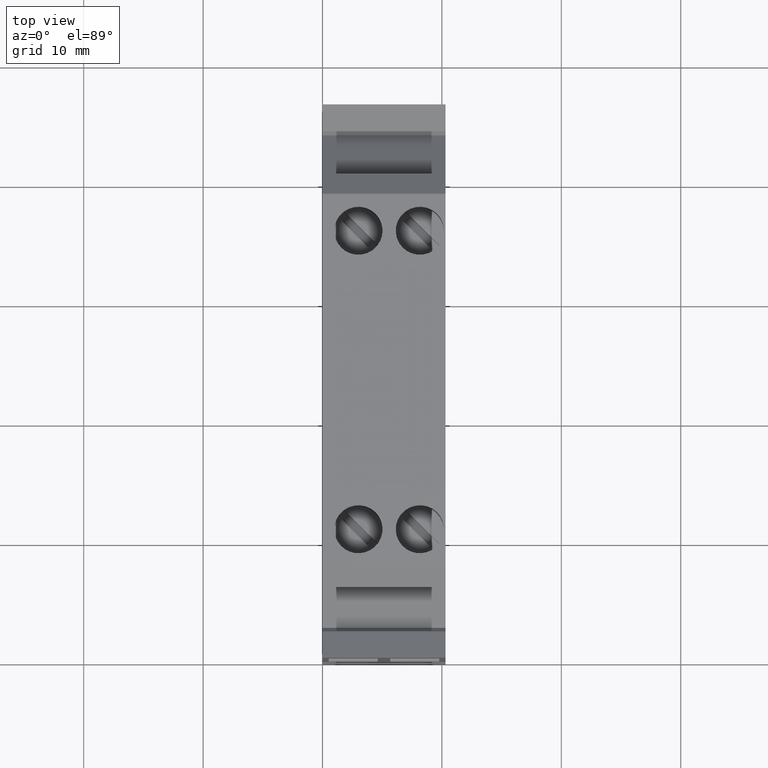
[diagram: clean part render]
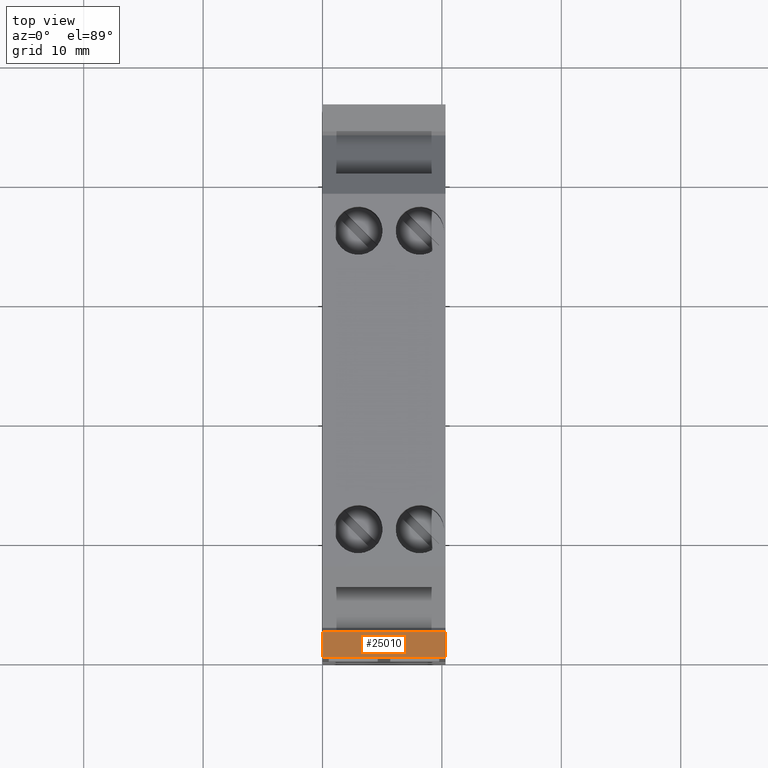
[diagram: same view with one face highlighted and labeled with its STEP entity id]
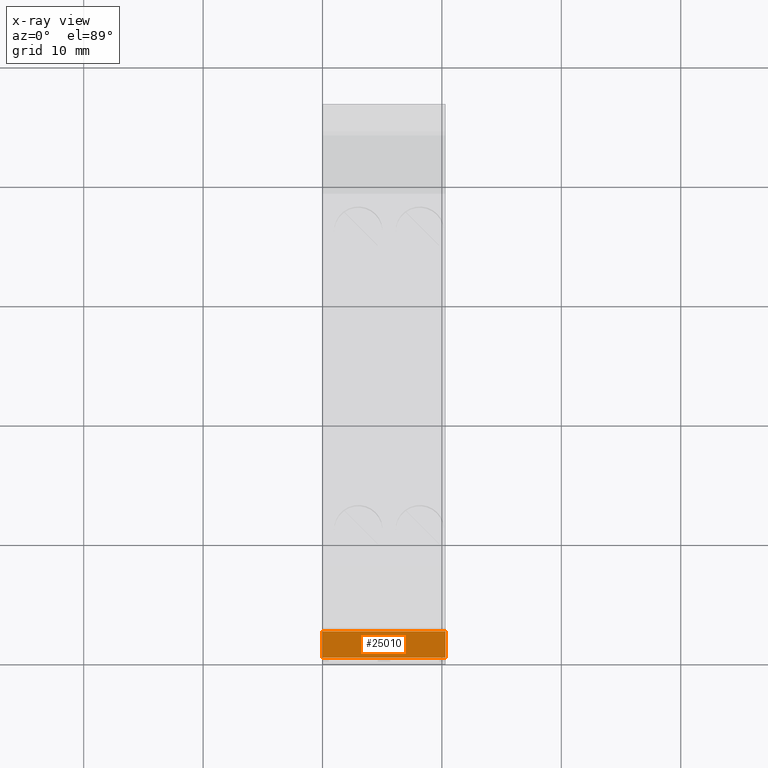
[diagram: x-ray of the same camera — body ghosted, the highlighted face saturated]
A machine part, top view. The second image highlights one B-rep face of the part: STEP entity #25010.
The next image is the same camera in x-ray: the body ghosted, the highlighted face saturated — about 0% of this face is hidden behind the body in this view.
In plain terms, the highlighted planar face has unit normal (-0, 0.519, 0.8548).
Its self-contained STEP definition (entity closure, byte-faithful):
#200=CARTESIAN_POINT('',(-44.8520985338077,37.4391457022166,10.3));
#210=VERTEX_POINT('',#200);
#240=CARTESIAN_POINT('',(0.,10.2034202204307,10.3));
#250=DIRECTION('',(-0.854752900484291,0.519035142465029,0.));
#260=VECTOR('',#250,1.);
#270=LINE('',#240,#260);
#280=CARTESIAN_POINT('',(-42.6201217273836,36.0838131855973,10.3));
#290=VERTEX_POINT('',#280);
#300=EDGE_CURVE('',#290,#210,#270,.T.);
#11160=CARTESIAN_POINT('',(-42.6201217273836,36.0838131855973,
-7.105427357601E-15));
#11170=VERTEX_POINT('',#11160);
#11200=CARTESIAN_POINT('',(0.,10.2034202204307,-7.105427357601E-15));
#11210=DIRECTION('',(-0.854752900484291,0.519035142465029,0.));
#11220=VECTOR('',#11210,1.);
#11230=LINE('',#11200,#11220);
#11240=CARTESIAN_POINT('',(-44.8520985338077,37.4391457022166,
-7.105427357601E-15));
#11250=VERTEX_POINT('',#11240);
#11260=EDGE_CURVE('',#11170,#11250,#11230,.T.);
#20880=CARTESIAN_POINT('',(-44.8520985338077,37.4391457022166,
-5.14999999999999));
#20890=DIRECTION('',(0.,0.,1.));
#20900=VECTOR('',#20890,1.);
#20910=LINE('',#20880,#20900);
#20920=EDGE_CURVE('',#11250,#210,#20910,.T.);
#24850=CARTESIAN_POINT('',(-42.8304922228466,36.2115573324978,5.15));
#24860=DIRECTION('',(0.519035142465029,0.854752900484291,0.));
#24870=DIRECTION('',(0.854752900484291,-0.519035142465029,0.));
#24880=AXIS2_PLACEMENT_3D('',#24850,#24860,#24870);
#24890=PLANE('',#24880);
#24900=ORIENTED_EDGE('',*,*,#300,.F.);
#24910=ORIENTED_EDGE('',*,*,#20920,.T.);
#24920=ORIENTED_EDGE('',*,*,#11260,.T.);
#24930=CARTESIAN_POINT('',(-42.6201217273836,36.0838131855973,
-5.14999999999999));
#24940=DIRECTION('',(0.,0.,-1.));
#24950=VECTOR('',#24940,1.);
#24960=LINE('',#24930,#24950);
#24970=EDGE_CURVE('',#290,#11170,#24960,.T.);
#24980=ORIENTED_EDGE('',*,*,#24970,.T.);
#24990=EDGE_LOOP('',(#24980,#24920,#24910,#24900));
#25000=FACE_OUTER_BOUND('',#24990,.T.);
#25010=ADVANCED_FACE('',(#25000),#24890,.T.);